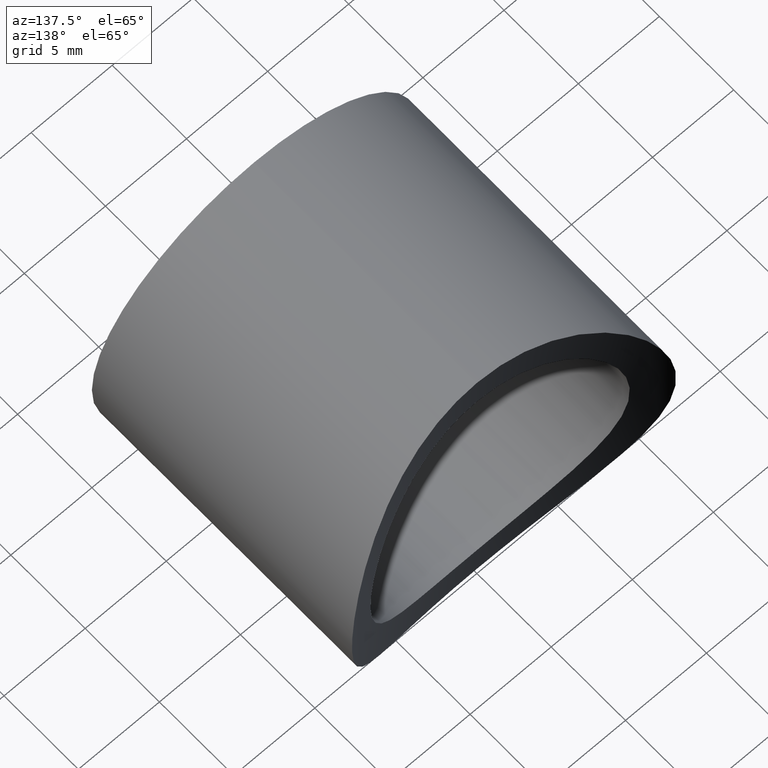
[diagram: clean part render]
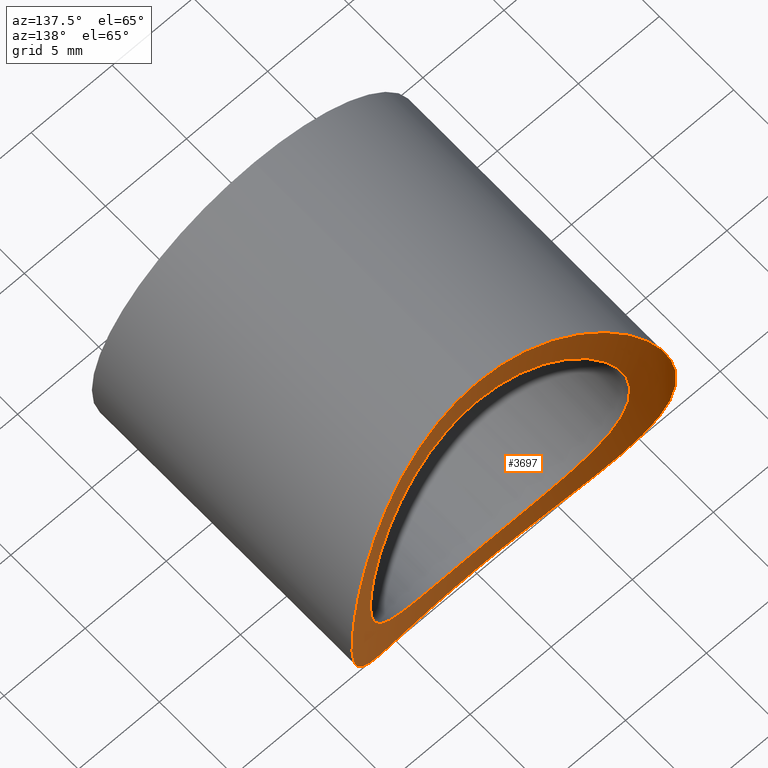
[diagram: same view with one face highlighted and labeled with its STEP entity id]
A machine part, auxiliary view. The second image highlights one B-rep face of the part: STEP entity #3697.
In plain terms, the highlighted cylindrical surface (partial cylindrical patch) has radius 21.2 mm, axis along (-0, -0, 1).
Its self-contained STEP definition (entity closure, byte-faithful):
#38 = CARTESIAN_POINT ( 'NONE',  ( 9.799569760061210900E-016, 15.00000000000000200, 8.000000000000000000 ) ) ;
#174 = CARTESIAN_POINT ( 'NONE',  ( 3.316552025421471800, 15.25961788054496200, 7.284806062970725200 ) ) ;
#176 = CARTESIAN_POINT ( 'NONE',  ( 3.564882681608621900, 15.29961879845273700, -9.348734026158293600 ) ) ;
#257 = B_SPLINE_CURVE_WITH_KNOTS ( 'NONE', 3,
 ( #6671, #3038, #4779, #260, #11317, #590, #11275, #11401, #7749, #11230, #10496, #5075, #2249, #6042, #8685, #9544, #7629, #2331, #9581, #7782, #6868, #4139, #8563, #8607, #3166, #5957, #2209, #10455, #11361, #4187, #547, #2362, #8525, #6908, #3126, #3287, #9453, #9413, #4014, #10334, #5869, #423, #5911, #6787, #1338, #10371, #3211, #463 ),
 .UNSPECIFIED., .F., .F.,
 ( 4, 2, 2, 2, 2, 2, 2, 2, 2, 2, 2, 2, 2, 2, 2, 2, 2, 2, 2, 2, 2, 2, 2, 4 ),
 ( 0.02524776514912073800, 0.02603659777596012100, 0.02682543040279950600, 0.02840309565647827400, 0.02919192828331765600, 0.02998076091015703900, 0.03155842616383580700, 0.03313609141751457100, 0.03392492404435395300, 0.03471375667119333500, 0.03629142192487210000, 0.03786908717855085700, 0.03944675243222962200, 0.04023558505906900400, 0.04102441768590837900, 0.04181325031274776100, 0.04260208293958714400, 0.04417974819326590800, 0.04496858082010529000, 0.04575741344694467200, 0.04733507870062342300, 0.04812391132746281200, 0.04891274395430218700, 0.05049040920798095200 ),
 .UNSPECIFIED. ) ;
#260 = CARTESIAN_POINT ( 'NONE',  ( -1.052258149906884600, 15.02449266128673600, 7.934903618066400100 ) ) ;
#331 = CARTESIAN_POINT ( 'NONE',  ( 2.619273181737872500, 15.15999510230365400, -9.656568613338885500 ) ) ;
#423 = CARTESIAN_POINT ( 'NONE',  ( -2.832277373318822500, 15.18860951778646400, -7.486487865831636900 ) ) ;
#452 = CARTESIAN_POINT ( 'NONE',  ( 1.319996317228848200, 15.03094129771828800, 9.934920591628078100 ) ) ;
#463 = CARTESIAN_POINT ( 'NONE',  ( -1.745362013855913500E-016, 15.00000000000000200, -8.000000000000000000 ) ) ;
#535 = CARTESIAN_POINT ( 'NONE',  ( 7.514639725077304700, 16.37528623459832000, 6.605725507864306700 ) ) ;
#547 = CARTESIAN_POINT ( 'NONE',  ( -7.170363942813223100, 16.24898176672949600, -3.557291231907520100 ) ) ;
#585 = CARTESIAN_POINT ( 'NONE',  ( -9.984193001737232000, 17.49820192923352700, -0.6525446043283996700 ) ) ;
#590 = CARTESIAN_POINT ( 'NONE',  ( -2.094917820724900600, 15.09735141002148000, 7.738937022819915700 ) ) ;
#670 = CARTESIAN_POINT ( 'NONE',  ( -0.3305320513126415700, 15.00000000000000700, 10.00000000000000200 ) ) ;
#704 = CARTESIAN_POINT ( 'NONE',  ( -9.916872468406351600, 17.46241610682388100, 1.328868483815093300 ) ) ;
#748 = CARTESIAN_POINT ( 'NONE',  ( -4.465420338276313600, 15.47353262229077800, 8.953549558358401900 ) ) ;
#826 = CARTESIAN_POINT ( 'NONE',  ( -1.745362013855913500E-016, 15.00000000000000200, -8.000000000000000000 ) ) ;
#980 = CARTESIAN_POINT ( 'NONE',  ( 7.792208709689611500, 16.48390002504727300, -1.830606618588046500 ) ) ;
#1101 = CARTESIAN_POINT ( 'NONE',  ( 4.470787562540694500, 15.46767378741292700, -8.968886456665787300 ) ) ;
#1324 = B_SPLINE_CURVE_WITH_KNOTS ( 'NONE', 3,
 ( #3356, #670, #7022, #9616, #9652, #6034, #8721, #11515, #748, #10537, #11550, #1584, #6983, #6076, #6151, #3280, #7778, #2506, #8788, #10645, #9738, #4222, #7856, #4181, #704, #10491, #5152, #585, #6941, #10609, #4263, #9702, #11470, #8753, #3428, #7818, #2466, #4346, #1507, #7060, #2398, #1615, #2430, #11429, #5192, #4307, #6113, #7889, #3392 ),
 .UNSPECIFIED., .F., .F.,
 ( 4, 2, 2, 2, 2, 2, 2, 2, 2, 2, 2, 2, 2, 1, 2, 2, 2, 2, 2, 2, 2, 2, 2, 2, 4 ),
 ( 0.03174344272034269200, 0.03273404863327239500, 0.03372465454620209000, 0.03570586637206149500, 0.03669647228499119100, 0.03768707819792089400, 0.03867768411085059600, 0.03966829002378029900, 0.04164950184963970400, 0.04264010776256940700, 0.04363071367549911600, 0.04561192550135852200, 0.04660253141428821700, 0.04759313732721792700, 0.04858374324014762300, 0.04957434915307732500, 0.05155556097893672400, 0.05254616689186643300, 0.05353677280479612900, 0.05551798463065553400, 0.05749919645651493200, 0.05848980236944463500, 0.05948040828237433100, 0.06146162010823372900, 0.06344283193409312700 ),
 .UNSPECIFIED. ) ;
#1338 = CARTESIAN_POINT ( 'NONE',  ( -1.826319224424958900, 15.07724839077931200, -7.793131937528214900 ) ) ;
#1412 = CARTESIAN_POINT ( 'NONE',  ( 7.520628071817157000, 16.37757478132244100, -6.598805551205492400 ) ) ;
#1450 = CARTESIAN_POINT ( 'NONE',  ( 4.159735258399629200, 15.40986275997035900, 9.099587380266527200 ) ) ;
#1465 = CARTESIAN_POINT ( 'NONE',  ( 5.477445416143513800, 15.71894802507713100, -5.836466890217986100 ) ) ;
#1507 = CARTESIAN_POINT ( 'NONE',  ( -6.617501636687190800, 16.05339995131916100, -7.525301431086476500 ) ) ;
#1526 = CYLINDRICAL_SURFACE ( 'NONE', #4483, 21.19999999999999200 ) ;
#1539 = EDGE_CURVE ( 'NONE', #5477, #10522, #257, .T. ) ;
#1584 = CARTESIAN_POINT ( 'NONE',  ( -5.851588958712095100, 15.82167562776218600, 8.115620296704793900 ) ) ;
#1592 = ORIENTED_EDGE ( 'NONE', *, *, #8543, .F. ) ;
#1615 = CARTESIAN_POINT ( 'NONE',  ( -5.041163041691229200, 15.60597943387858100, -8.642536271191225700 ) ) ;
#1835 = B_SPLINE_CURVE_WITH_KNOTS ( 'NONE', 3,
 ( #5920, #8123, #4733, #1928, #9490, #2155, #3072, #5144, #6183, #7993, #9416, #5873, #1465, #5313, #10800, #9127, #5542, #2868, #8238, #3622, #980, #1885, #6343, #1845, #7350, #6431, #10838, #9168, #2824, #10044, #9886, #11106, #10200, #3070, #4699, #2984, #4809, #11000, #174, #7420, #9005, #10718, #10987, #5610, #8266, #38 ),
 .UNSPECIFIED., .F., .F.,
 ( 4, 2, 2, 2, 2, 2, 2, 2, 2, 2, 2, 2, 2, 2, 2, 2, 2, 2, 2, 2, 2, 2, 4 ),
 ( 2.708887720596819800E-019, 0.001577985321820048800, 0.002366977982730072800, 0.003155970643640097100, 0.004733955965460143900, 0.005522948626370167300, 0.006311941287280189800, 0.007889926609100235800, 0.009467911930920280800, 0.01025690459183030200, 0.01104589725274032400, 0.01262388257456036900, 0.01420186789638041300, 0.01577985321820045800, 0.01735783854002050100, 0.01814683120093052100, 0.01893582386184054400, 0.02051380918366059100, 0.02130280184457061800, 0.02209179450548064100, 0.02366977982730068800, 0.02445877248821071500, 0.02524776514912073800 ),
 .UNSPECIFIED. ) ;
#1845 = CARTESIAN_POINT ( 'NONE',  ( 8.000295946163763700, 16.56749468669876900, 0.5229173374466646900 ) ) ;
#1885 = CARTESIAN_POINT ( 'NONE',  ( 7.947757351596415300, 16.54584999876820800, -1.054372680634935200 ) ) ;
#1928 = CARTESIAN_POINT ( 'NONE',  ( 1.830081285274577600, 15.07756149186166500, -7.792284957383528400 ) ) ;
#2008 = CARTESIAN_POINT ( 'NONE',  ( 5.851876461251867700, 15.82173056004573500, -8.115505318998211600 ) ) ;
#2155 = CARTESIAN_POINT ( 'NONE',  ( 2.590409988903058700, 15.15731968653643800, -7.573610023513878400 ) ) ;
#2203 = CARTESIAN_POINT ( 'NONE',  ( 9.983786367746001000, 17.49798363900853500, 0.6598665803628666100 ) ) ;
#2209 = CARTESIAN_POINT ( 'NONE',  ( -7.726202717015244300, 16.45784703124180100, -2.091620340713952400 ) ) ;
#2249 = CARTESIAN_POINT ( 'NONE',  ( -5.291365096237360200, 15.66737617033030500, 6.022893500429362700 ) ) ;
#2331 = CARTESIAN_POINT ( 'NONE',  ( -7.172099954667315200, 16.24960776974974800, 3.553763773330198100 ) ) ;
#2356 = CARTESIAN_POINT ( 'NONE',  ( 8.125074877737928200, 16.61781892301117500, -5.838551294713068900 ) ) ;
#2362 = CARTESIAN_POINT ( 'NONE',  ( -6.922637183044116700, 16.16167816286446200, -4.018150620986859600 ) ) ;
#2398 = CARTESIAN_POINT ( 'NONE',  ( -5.318377660012116900, 15.67606845895066000, -8.474602360129138000 ) ) ;
#2430 = CARTESIAN_POINT ( 'NONE',  ( -4.466243350366521100, 15.47369598249479600, -8.953179789721431800 ) ) ;
#2466 = CARTESIAN_POINT ( 'NONE',  ( -7.945037436358124900, 16.54118567882599000, -6.106768572243277400 ) ) ;
#2468 = CARTESIAN_POINT ( 'NONE',  ( 0.0000000000000000000, 36.19999999999999600, -10.00000000000000000 ) ) ;
#2506 = CARTESIAN_POINT ( 'NONE',  ( -8.482370872701642000, 16.76992966816009600, 5.305997497444326200 ) ) ;
#2510 = CARTESIAN_POINT ( 'NONE',  ( 9.799569760061210900E-016, 15.00000000000000200, 8.000000000000000000 ) ) ;
#2546 = DIRECTION ( 'NONE',  ( -0.0000000000000000000, -0.0000000000000000000, 1.000000000000000000 ) ) ;
#2704 = ORIENTED_EDGE ( 'NONE', *, *, #6165, .T. ) ;
#2824 = CARTESIAN_POINT ( 'NONE',  ( 6.933797699331198500, 16.16365971007833100, 4.023856254664492500 ) ) ;
#2868 = CARTESIAN_POINT ( 'NONE',  ( 7.484001771754024400, 16.36464965533273400, -2.838554362726789300 ) ) ;
#2913 = CARTESIAN_POINT ( 'NONE',  ( 6.114163262400973400, 15.89912874730086600, -7.919693625984873400 ) ) ;
#2984 = CARTESIAN_POINT ( 'NONE',  ( 4.240371879425437000, 15.42722681743415000, 6.788737650995892100 ) ) ;
#3038 = CARTESIAN_POINT ( 'NONE',  ( -0.2628777837284299000, 15.00000000000000700, 7.999999999999998200 ) ) ;
#3070 = CARTESIAN_POINT ( 'NONE',  ( 5.287714964287945700, 15.66649006647155100, 6.025707825723639400 ) ) ;
#3072 = CARTESIAN_POINT ( 'NONE',  ( 2.840076410207415000, 15.18967708295580200, -7.483487922326565600 ) ) ;
#3116 = CARTESIAN_POINT ( 'NONE',  ( 6.119159843689280900, 15.89457138695086000, 7.936050530277495500 ) ) ;
#3126 = CARTESIAN_POINT ( 'NONE',  ( -6.022016099402059700, 15.86971875908380800, -5.291931266534966500 ) ) ;
#3154 = CARTESIAN_POINT ( 'NONE',  ( 9.351623365317156100, 17.17351840123544100, 3.557410587330188400 ) ) ;
#3166 = CARTESIAN_POINT ( 'NONE',  ( -7.947911579914184600, 16.54590919701355000, -1.054225505825688900 ) ) ;
#3203 = CARTESIAN_POINT ( 'NONE',  ( 7.930323009083584100, 16.53789520126933300, -6.100332635916186200 ) ) ;
#3211 = CARTESIAN_POINT ( 'NONE',  ( -0.5338062682893969200, 15.00000000000000400, -7.999999999999998200 ) ) ;
#3280 = CARTESIAN_POINT ( 'NONE',  ( -7.535366125896487700, 16.37849879132460600, 6.605639209858586500 ) ) ;
#3287 = CARTESIAN_POINT ( 'NONE',  ( -5.471503686354011200, 15.71735122794744300, -5.842084475425826500 ) ) ;
#3356 = CARTESIAN_POINT ( 'NONE',  ( 1.224647930545293300E-015, 15.00000000000000500, 10.00000000000000000 ) ) ;
#3392 = CARTESIAN_POINT ( 'NONE',  ( -1.035815001783296300E-015, 15.00000000000000400, -10.00000000000000500 ) ) ;
#3428 = CARTESIAN_POINT ( 'NONE',  ( -8.651502513804436100, 16.84488679792618300, -5.025736288164326400 ) ) ;
#3589 = EDGE_LOOP ( 'NONE', ( #2704, #4000 ) ) ;
#3622 = CARTESIAN_POINT ( 'NONE',  ( 7.726818692974105400, 16.45808787191126000, -2.089391993706107600 ) ) ;
#3697 = ADVANCED_FACE ( 'NONE', ( #6639, #4204 ), #1526, .F. ) ;
#3811 = CARTESIAN_POINT ( 'NONE',  ( 6.850944227835479500, 16.13603950810869100, -7.291621095102188500 ) ) ;
#4000 = ORIENTED_EDGE ( 'NONE', *, *, #1539, .T. ) ;
#4014 = CARTESIAN_POINT ( 'NONE',  ( -4.664933800320588000, 15.51844002268613700, -6.504272835219683900 ) ) ;
#4043 = CARTESIAN_POINT ( 'NONE',  ( 8.121782843819307400, 16.61645922232164800, 5.843058933521574800 ) ) ;
#4085 = CARTESIAN_POINT ( 'NONE',  ( 9.737749516231998500, 17.36859943491655000, -2.298979730444311800 ) ) ;
#4131 = CARTESIAN_POINT ( 'NONE',  ( 3.559352837399915300, 15.29870312018573100, 9.350769769915844500 ) ) ;
#4139 = CARTESIAN_POINT ( 'NONE',  ( -7.946883057183317300, 16.54549873024335200, 1.059592348924786300 ) ) ;
#4181 = CARTESIAN_POINT ( 'NONE',  ( -9.866582218182834700, 17.43577713821213500, 1.661408267465684900 ) ) ;
#4187 = CARTESIAN_POINT ( 'NONE',  ( -7.282463882100981500, 16.28977128459941100, -3.321713425449267300 ) ) ;
#4204 = FACE_OUTER_BOUND ( 'NONE', #5439, .T. ) ;
#4222 = CARTESIAN_POINT ( 'NONE',  ( -9.476538489294368300, 17.23390675649492100, 3.258406762146133700 ) ) ;
#4263 = CARTESIAN_POINT ( 'NONE',  ( -9.673083764304514900, 17.33486666546104300, -2.621659036090126200 ) ) ;
#4307 = CARTESIAN_POINT ( 'NONE',  ( -2.636208476890872500, 15.15453160835485000, -9.668776921691439000 ) ) ;
#4346 = CARTESIAN_POINT ( 'NONE',  ( -7.534969090312109200, 16.37826793034711100, -6.606491530934619900 ) ) ;
#4483 = AXIS2_PLACEMENT_3D ( 'NONE', #2468, #2546, #6153 ) ;
#4699 = CARTESIAN_POINT ( 'NONE',  ( 4.888679713128536400, 15.56662295834630400, 6.353869761171565300 ) ) ;
#4733 = CARTESIAN_POINT ( 'NONE',  ( 1.057970303738689200, 15.02012457544671500, -7.947094331107354700 ) ) ;
#4736 = CARTESIAN_POINT ( 'NONE',  ( 3.253099303615301500, 15.24863386276505600, -9.461884289374426200 ) ) ;
#4779 = CARTESIAN_POINT ( 'NONE',  ( -0.5259039808799802500, 15.00488775050155100, 7.987075036891992500 ) ) ;
#4809 = CARTESIAN_POINT ( 'NONE',  ( 4.014593116890306000, 15.38226228568755300, 6.924726210291229500 ) ) ;
#4813 = CARTESIAN_POINT ( 'NONE',  ( 0.6715000176472312200, 15.00000000000001100, -10.00000000000000400 ) ) ;
#4897 = CARTESIAN_POINT ( 'NONE',  ( 0.6619828014559345800, 15.00000000000000200, 10.00000000000000200 ) ) ;
#4988 = CARTESIAN_POINT ( 'NONE',  ( 6.615491024262429000, 16.05284098528395400, 7.526545802229871500 ) ) ;
#5028 = CARTESIAN_POINT ( 'NONE',  ( 3.252307806211661500, 15.24855256137413700, 9.462058118314161000 ) ) ;
#5075 = CARTESIAN_POINT ( 'NONE',  ( -4.891090836729145700, 15.56722436974575000, 6.351893487636339800 ) ) ;
#5144 = CARTESIAN_POINT ( 'NONE',  ( 3.565316340233421600, 15.29623642089246800, -7.180739613143011000 ) ) ;
#5152 = CARTESIAN_POINT ( 'NONE',  ( -10.01630771021996400, 17.51543730108091200, 0.007563276622138613000 ) ) ;
#5192 = CARTESIAN_POINT ( 'NONE',  ( -3.261071465060897200, 15.24330098438612100, -9.476013703614469800 ) ) ;
#5313 = CARTESIAN_POINT ( 'NONE',  ( 6.025218324868239600, 15.87070248919147600, -5.288077186221997300 ) ) ;
#5439 = EDGE_LOOP ( 'NONE', ( #1592, #6797 ) ) ;
#5477 = VERTEX_POINT ( 'NONE', #2510 ) ;
#5542 = CARTESIAN_POINT ( 'NONE',  ( 7.183669424519171900, 16.25305745582881700, -3.558874422948778500 ) ) ;
#5610 = CARTESIAN_POINT ( 'NONE',  ( 0.5257137519102421700, 15.00488979726490500, 7.987069385700785100 ) ) ;
#5783 = CARTESIAN_POINT ( 'NONE',  ( 2.299254260693633300, 15.12255376882135800, -9.737662300090569500 ) ) ;
#5823 = CARTESIAN_POINT ( 'NONE',  ( 9.999444577251219700, 17.50638856351361400, -0.6721608793019907500 ) ) ;
#5859 = CARTESIAN_POINT ( 'NONE',  ( 9.464356666739544000, 17.22955928856300600, 3.245633441166105600 ) ) ;
#5869 = CARTESIAN_POINT ( 'NONE',  ( -3.561318817818912600, 15.29549549164777600, -7.182909648358482000 ) ) ;
#5873 = CARTESIAN_POINT ( 'NONE',  ( 5.285800002918810100, 15.66848302270973100, -6.010666353299558100 ) ) ;
#5902 = CARTESIAN_POINT ( 'NONE',  ( 8.970953552040864300, 16.98954871049054900, 4.467002460431856100 ) ) ;
#5911 = CARTESIAN_POINT ( 'NONE',  ( -2.582281625750945800, 15.15633941432141200, -7.576326960304269800 ) ) ;
#5914 = EDGE_CURVE ( 'NONE', #9220, #10197, #1324, .T. ) ;
#5920 = CARTESIAN_POINT ( 'NONE',  ( -1.745362013855913500E-016, 15.00000000000000200, -8.000000000000000000 ) ) ;
#5945 = CARTESIAN_POINT ( 'NONE',  ( 9.917562398799546500, 17.46278136249937800, 1.324148861188949100 ) ) ;
#5957 = CARTESIAN_POINT ( 'NONE',  ( -7.791586032681900400, 16.48365315179156500, -1.833401093632588000 ) ) ;
#6034 = CARTESIAN_POINT ( 'NONE',  ( -2.629301629930827800, 15.15362126802709500, 9.670755308369637100 ) ) ;
#6042 = CARTESIAN_POINT ( 'NONE',  ( -6.030799060799392200, 15.87226897559248300, 5.282353016171339500 ) ) ;
#6076 = CARTESIAN_POINT ( 'NONE',  ( -6.610615804086723600, 16.05531203798530600, 7.510309126637428000 ) ) ;
#6113 = CARTESIAN_POINT ( 'NONE',  ( -1.343733945499761400, 15.03267343188852000, -9.931224565922161000 ) ) ;
#6151 = CARTESIAN_POINT ( 'NONE',  ( -6.851926804267424800, 16.13636343348573000, 7.290757990393999000 ) ) ;
#6153 = DIRECTION ( 'NONE',  ( 1.000000000000000000, 0.0000000000000000000, 0.0000000000000000000 ) ) ;
#6165 = EDGE_CURVE ( 'NONE', #10522, #5477, #1835, .T. ) ;
#6183 = CARTESIAN_POINT ( 'NONE',  ( 4.023098615849438200, 15.38051743039193300, -6.934445561909313900 ) ) ;
#6343 = CARTESIAN_POINT ( 'NONE',  ( 7.999701513371737100, 16.56725246431455300, -0.5319337035427009800 ) ) ;
#6431 = CARTESIAN_POINT ( 'NONE',  ( 7.740285823375071300, 16.46322316911748400, 2.089061850299557500 ) ) ;
#6479 = CARTESIAN_POINT ( 'NONE',  ( -1.035815001783296300E-015, 15.00000000000000400, -10.00000000000000500 ) ) ;
#6639 = FACE_BOUND ( 'NONE', #3589, .T. ) ;
#6671 = CARTESIAN_POINT ( 'NONE',  ( 9.799569760061210900E-016, 15.00000000000000200, 8.000000000000000000 ) ) ;
#6737 = CARTESIAN_POINT ( 'NONE',  ( 7.927315506611408000, 16.53666470467293000, 6.104349968800717900 ) ) ;
#6787 = CARTESIAN_POINT ( 'NONE',  ( -2.080056750443126700, 15.10077742771384700, -7.729312551518425800 ) ) ;
#6797 = ORIENTED_EDGE ( 'NONE', *, *, #5914, .F. ) ;
#6817 = CARTESIAN_POINT ( 'NONE',  ( 8.667764545993943400, 16.84891507489771800, -5.029110232892597000 ) ) ;
#6859 = CARTESIAN_POINT ( 'NONE',  ( 10.00027252634969200, 17.50683147519664100, 0.3236084424597576700 ) ) ;
#6868 = CARTESIAN_POINT ( 'NONE',  ( -7.740222361153750600, 16.46319863079865100, 2.089173058973970300 ) ) ;
#6901 = CARTESIAN_POINT ( 'NONE',  ( 2.623904985373545900, 15.16061363852122300, 9.655214784168823200 ) ) ;
#6908 = CARTESIAN_POINT ( 'NONE',  ( -6.350685982015109600, 15.97124878157879900, -4.892884123521679600 ) ) ;
#6941 = CARTESIAN_POINT ( 'NONE',  ( -9.919044469151643300, 17.46356710057499500, -1.312433303284045200 ) ) ;
#6983 = CARTESIAN_POINT ( 'NONE',  ( -6.110572825874994500, 15.89803964795865100, 7.922492298927951800 ) ) ;
#7022 = CARTESIAN_POINT ( 'NONE',  ( -0.6620599201533544600, 15.00772514401217000, 9.983655372228945200 ) ) ;
#7060 = CARTESIAN_POINT ( 'NONE',  ( -6.120941286659135700, 15.89527874827985700, -7.934115083143219700 ) ) ;
#7350 = CARTESIAN_POINT ( 'NONE',  ( 7.947061354667486200, 16.54557047063556400, 1.058498874382349600 ) ) ;
#7402 = CARTESIAN_POINT ( 'NONE',  ( 1.224647930545293300E-015, 15.00000000000000500, 10.00000000000000000 ) ) ;
#7420 = CARTESIAN_POINT ( 'NONE',  ( 2.594828870836611000, 15.15378072632637300, 7.585415610285438400 ) ) ;
#7426 = CARTESIAN_POINT ( 'NONE',  ( 5.041911454663118500, 15.60066935981057800, -8.660408055346167100 ) ) ;
#7629 = CARTESIAN_POINT ( 'NONE',  ( -6.924955168997618300, 16.16248109650444300, 4.014131366030039100 ) ) ;
#7660 = CARTESIAN_POINT ( 'NONE',  ( 5.307533654428956600, 15.67321935628560700, 8.481529361503042700 ) ) ;
#7699 = CARTESIAN_POINT ( 'NONE',  ( 9.657176310925287100, 17.32698716152858200, 2.616701979472703800 ) ) ;
#7737 = CARTESIAN_POINT ( 'NONE',  ( 5.026240919635204900, 15.60234590669886900, 8.651174990311218900 ) ) ;
#7749 = CARTESIAN_POINT ( 'NONE',  ( -3.559445908777164400, 15.29962814567708100, 7.169326924535742100 ) ) ;
#7778 = CARTESIAN_POINT ( 'NONE',  ( -7.942516278035515000, 16.54015691663967000, 6.110101098419855600 ) ) ;
#7782 = CARTESIAN_POINT ( 'NONE',  ( -7.587822000187969700, 16.40325490682681700, 2.588415461532205700 ) ) ;
#7818 = CARTESIAN_POINT ( 'NONE',  ( -8.484171540589446900, 16.77071840327763400, -5.303102284028629000 ) ) ;
#7856 = CARTESIAN_POINT ( 'NONE',  ( -9.669222213518256800, 17.33288154259845400, 2.635342517219541900 ) ) ;
#7889 = CARTESIAN_POINT ( 'NONE',  ( -0.6705681108369122600, 15.00000000000000200, -9.999999999999996400 ) ) ;
#7993 = CARTESIAN_POINT ( 'NONE',  ( 4.672634135487479400, 15.52016599508973200, -6.498804095128621200 ) ) ;
#8123 = CARTESIAN_POINT ( 'NONE',  ( 0.5339145640002236300, 15.00000000000000400, -8.000000000000000000 ) ) ;
#8238 = CARTESIAN_POINT ( 'NONE',  ( 7.572761779115528400, 16.39848236563574300, -2.592790977735048000 ) ) ;
#8266 = CARTESIAN_POINT ( 'NONE',  ( 0.2629311149426575800, 15.00000000000000500, 7.999999999999998200 ) ) ;
#8513 = CARTESIAN_POINT ( 'NONE',  ( 9.737970138201570000, 17.36871412917782100, 2.297954202194568900 ) ) ;
#8525 = CARTESIAN_POINT ( 'NONE',  ( -6.786471577468774700, 16.11500060734519800, -4.244017601318582900 ) ) ;
#8543 = EDGE_CURVE ( 'NONE', #10197, #9220, #10242, .T. ) ;
#8556 = CARTESIAN_POINT ( 'NONE',  ( 9.933452327128028600, 17.47066001166398100, -1.327711803124456600 ) ) ;
#8563 = CARTESIAN_POINT ( 'NONE',  ( -8.000236960101471300, 16.56747065077578900, 0.5236475136593562500 ) ) ;
#8595 = CARTESIAN_POINT ( 'NONE',  ( 9.655561371689801200, 17.32615694780964000, -2.622817394434086200 ) ) ;
#8607 = CARTESIAN_POINT ( 'NONE',  ( -7.999761412944381300, 16.56727687247920100, -0.5308629505826346600 ) ) ;
#8637 = CARTESIAN_POINT ( 'NONE',  ( 8.973681937040789000, 16.99087054011579300, -4.460395499377525200 ) ) ;
#8685 = CARTESIAN_POINT ( 'NONE',  ( -6.359142445912526800, 15.97394596510665800, 4.881505423733796300 ) ) ;
#8721 = CARTESIAN_POINT ( 'NONE',  ( -3.256633139178527300, 15.24251522495184800, 9.477778127438023500 ) ) ;
#8753 = CARTESIAN_POINT ( 'NONE',  ( -8.960797184552793800, 16.98612437250705700, -4.450913928829326200 ) ) ;
#8788 = CARTESIAN_POINT ( 'NONE',  ( -8.651025023253712500, 16.84467141260784100, 5.026583840206774800 ) ) ;
#9005 = CARTESIAN_POINT ( 'NONE',  ( 2.094933870674791100, 15.09731943155993300, 7.739026314547274400 ) ) ;
#9127 = CARTESIAN_POINT ( 'NONE',  ( 6.938404400381740400, 16.16520771256308100, -4.016623549441324500 ) ) ;
#9168 = CARTESIAN_POINT ( 'NONE',  ( 7.181073957962048800, 16.25208894127832700, 3.565257915118367200 ) ) ;
#9172 = CARTESIAN_POINT ( 'NONE',  ( -1.035815001783296300E-015, 15.00000000000000400, -10.00000000000000500 ) ) ;
#9201 = CARTESIAN_POINT ( 'NONE',  ( 6.612986507250179900, 16.05609830561897100, -7.508192124851778000 ) ) ;
#9220 = VERTEX_POINT ( 'NONE', #7402 ) ;
#9413 = CARTESIAN_POINT ( 'NONE',  ( -4.873603669922972300, 15.56674478275205200, -6.349503790723995100 ) ) ;
#9416 = CARTESIAN_POINT ( 'NONE',  ( 4.883781093397892900, 15.56916014091078500, -6.341645994007644800 ) ) ;
#9444 = CARTESIAN_POINT ( 'NONE',  ( 9.868161836033936000, 17.43661086213432300, 1.651677300725693500 ) ) ;
#9453 = CARTESIAN_POINT ( 'NONE',  ( -5.277363863329097300, 15.66630417470823200, -6.018109485040399800 ) ) ;
#9490 = CARTESIAN_POINT ( 'NONE',  ( 2.085106384710730100, 15.10125714527820100, -7.728009062062309200 ) ) ;
#9491 = CARTESIAN_POINT ( 'NONE',  ( 9.461502403920588800, 17.22813163597777100, -3.254075713258555200 ) ) ;
#9544 = CARTESIAN_POINT ( 'NONE',  ( -6.791065755377414500, 16.11656367740824400, 4.236552002333671600 ) ) ;
#9581 = CARTESIAN_POINT ( 'NONE',  ( -7.285745867267463500, 16.29097071916242000, 3.314610306597737500 ) ) ;
#9616 = CARTESIAN_POINT ( 'NONE',  ( -1.327170278731089900, 15.03896373140341500, 9.917172832040499500 ) ) ;
#9652 = CARTESIAN_POINT ( 'NONE',  ( -1.657668864725189600, 15.06240422534719600, 9.867183881878348800 ) ) ;
#9702 = CARTESIAN_POINT ( 'NONE',  ( -9.480367718757706900, 17.23579904712261900, -3.248130547208194900 ) ) ;
#9738 = CARTESIAN_POINT ( 'NONE',  ( -9.100633570405287600, 17.05221064241844100, 4.157399151979714000 ) ) ;
#9886 = CARTESIAN_POINT ( 'NONE',  ( 6.345713613427216500, 15.97125996280822100, 4.878524849523814500 ) ) ;
#10044 = CARTESIAN_POINT ( 'NONE',  ( 6.500620702519621700, 16.02067763354848000, 4.670029218895381400 ) ) ;
#10126 = CARTESIAN_POINT ( 'NONE',  ( 7.304765451073788700, 16.29677540854533300, -6.836927432132823100 ) ) ;
#10197 = VERTEX_POINT ( 'NONE', #6479 ) ;
#10200 = CARTESIAN_POINT ( 'NONE',  ( 5.838128426364028700, 15.81882004370829800, 5.475721647729706400 ) ) ;
#10242 = B_SPLINE_CURVE_WITH_KNOTS ( 'NONE', 3,
 ( #9172, #4813, #11003, #5783, #331, #4736, #176, #1101, #7426, #2008, #2913, #9201, #3811, #10126, #1412, #3203, #2356, #6817, #8637, #11308, #9491, #8595, #4085, #8556, #5823, #6859, #2203, #5945, #9444, #8513, #7699, #5859, #3154, #5902, #10404, #4043, #6737, #535, #10361, #4988, #3116, #7660, #7737, #10283, #1450, #4131, #5028, #6901, #11350, #452, #4897, #11222 ),
 .UNSPECIFIED., .F., .F.,
 ( 4, 2, 2, 2, 2, 2, 2, 2, 2, 2, 2, 2, 2, 2, 2, 2, 2, 2, 2, 2, 2, 2, 2, 2, 2, 4 ),
 ( 1.811534215863891100E-018, 0.001983965170021423400, 0.002975947755032134100, 0.003967930340042844300, 0.005951895510064263800, 0.006943878095074973600, 0.007935860680085685100, 0.008927843265096395800, 0.009919825850107106400, 0.01190379102012852800, 0.01289577360513923800, 0.01388775619014994900, 0.01587172136017137400, 0.01686370394518208300, 0.01785568653019279500, 0.01884766911520351100, 0.01983965170021422000, 0.02182361687023564500, 0.02281559945524635700, 0.02380758204025706200, 0.02579154721027847300, 0.02678352979528917500, 0.02777551238029988100, 0.02876749496531058300, 0.02975947755032128800, 0.03174344272034269200 ),
 .UNSPECIFIED. ) ;
#10283 = CARTESIAN_POINT ( 'NONE',  ( 4.453071463694025000, 15.47087540515196800, 8.959692016717744100 ) ) ;
#10334 = CARTESIAN_POINT ( 'NONE',  ( -4.018765390044825000, 15.37972991130532400, -6.936729391087601100 ) ) ;
#10361 = CARTESIAN_POINT ( 'NONE',  ( 7.297704964963183500, 16.29417957710762700, 6.844479932444973400 ) ) ;
#10371 = CARTESIAN_POINT ( 'NONE',  ( -1.057270676052309000, 15.02013955345982100, -7.947047749854388800 ) ) ;
#10404 = CARTESIAN_POINT ( 'NONE',  ( 8.662889897059862700, 16.84675628107751400, 5.037173382212854400 ) ) ;
#10455 = CARTESIAN_POINT ( 'NONE',  ( -7.572249391138240200, 16.39828665431527800, -2.594248105426429300 ) ) ;
#10491 = CARTESIAN_POINT ( 'NONE',  ( -9.983180135521458000, 17.49765993010021600, 0.6681058176986132100 ) ) ;
#10496 = CARTESIAN_POINT ( 'NONE',  ( -4.244864599241618700, 15.42815187616921700, 6.785901166901749300 ) ) ;
#10522 = VERTEX_POINT ( 'NONE', #826 ) ;
#10537 = CARTESIAN_POINT ( 'NONE',  ( -5.038434799894069700, 15.60532584564754700, 8.644084871094682000 ) ) ;
#10609 = CARTESIAN_POINT ( 'NONE',  ( -9.869474410435362400, 17.43729960341375200, -1.644349800058571500 ) ) ;
#10645 = CARTESIAN_POINT ( 'NONE',  ( -8.960727370875039500, 16.98608983929265600, 4.451083468150282700 ) ) ;
#10718 = CARTESIAN_POINT ( 'NONE',  ( 1.314970510872226300, 15.03921501149906300, 7.895642571094239100 ) ) ;
#10800 = CARTESIAN_POINT ( 'NONE',  ( 6.355026285672330700, 15.97259288657114800, -4.887572124232751700 ) ) ;
#10838 = CARTESIAN_POINT ( 'NONE',  ( 7.587419722267190600, 16.40308001848415000, 2.590356954009579200 ) ) ;
#10987 = CARTESIAN_POINT ( 'NONE',  ( 1.050979179406709800, 15.02443591732473600, 7.935054825607688900 ) ) ;
#11000 = CARTESIAN_POINT ( 'NONE',  ( 3.552404757979976200, 15.29843111458924700, 7.172810566100197100 ) ) ;
#11003 = CARTESIAN_POINT ( 'NONE',  ( 1.329948976981336200, 15.03180511113889200, -9.933065217862916200 ) ) ;
#11106 = CARTESIAN_POINT ( 'NONE',  ( 6.014322579519533600, 15.87026983294164100, 5.281667339064276800 ) ) ;
#11222 = CARTESIAN_POINT ( 'NONE',  ( 1.224647930545293300E-015, 15.00000000000000500, 10.00000000000000000 ) ) ;
#11230 = CARTESIAN_POINT ( 'NONE',  ( -4.021762293304621300, 15.38364520664971600, 6.920573082089141800 ) ) ;
#11275 = CARTESIAN_POINT ( 'NONE',  ( -2.595577110022948100, 15.15381747355096700, 7.585342131568491900 ) ) ;
#11308 = CARTESIAN_POINT ( 'NONE',  ( 9.349957769969515600, 17.17271182674138100, -3.561434202578584300 ) ) ;
#11317 = CARTESIAN_POINT ( 'NONE',  ( -1.316993233762230800, 15.03934917425381300, 7.895282487151131800 ) ) ;
#11350 = CARTESIAN_POINT ( 'NONE',  ( 2.300973500818421800, 15.12268090806926100, 9.737390836789632700 ) ) ;
#11361 = CARTESIAN_POINT ( 'NONE',  ( -7.483406412910548900, 16.36442296899641500, -2.840191672075048000 ) ) ;
#11401 = CARTESIAN_POINT ( 'NONE',  ( -3.320841705815379200, 15.26028378337977500, 7.282899100747790100 ) ) ;
#11429 = CARTESIAN_POINT ( 'NONE',  ( -4.167622737415464400, 15.41141236395810300, -9.096058290347999200 ) ) ;
#11470 = CARTESIAN_POINT ( 'NONE',  ( -9.102514520183245100, 17.05309941855215400, -4.153451630089816300 ) ) ;
#11515 = CARTESIAN_POINT ( 'NONE',  ( -4.167988712715620100, 15.41146164432025900, 9.095952643880123000 ) ) ;
#11550 = CARTESIAN_POINT ( 'NONE',  ( -5.315519419953335300, 15.67532093166954600, 8.476416662606142800 ) ) ;